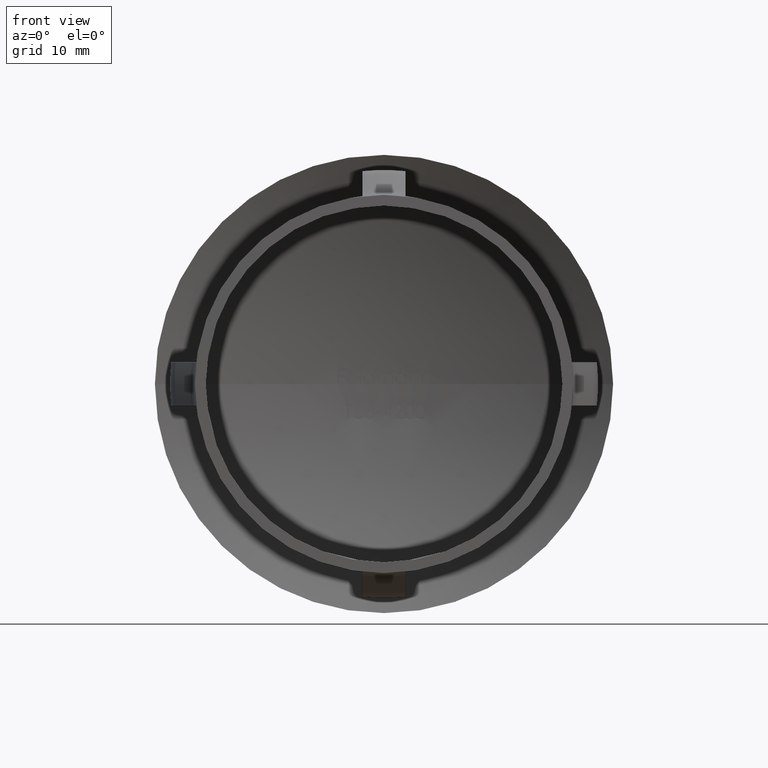
[diagram: clean part render]
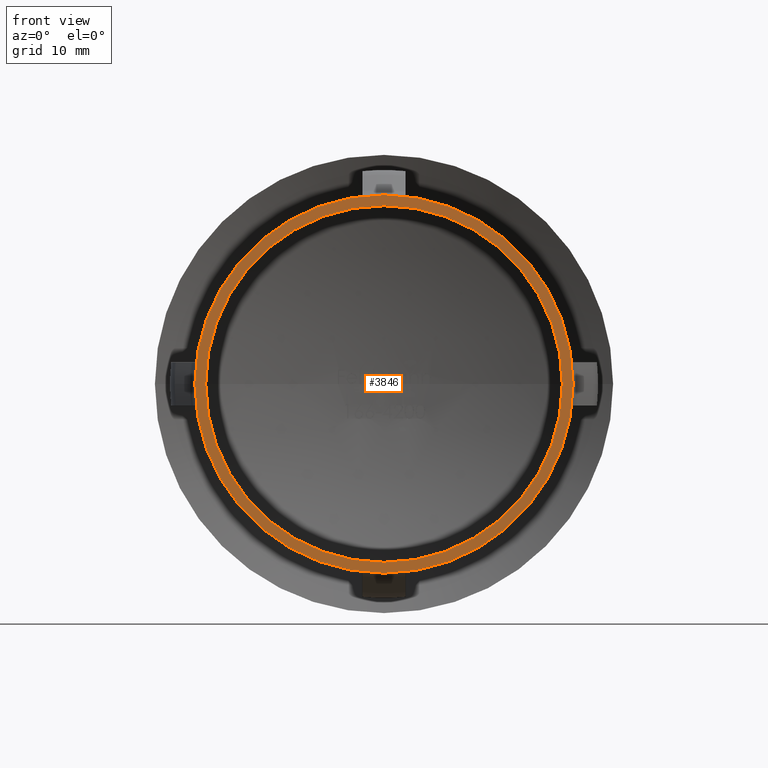
[diagram: same view with one face highlighted and labeled with its STEP entity id]
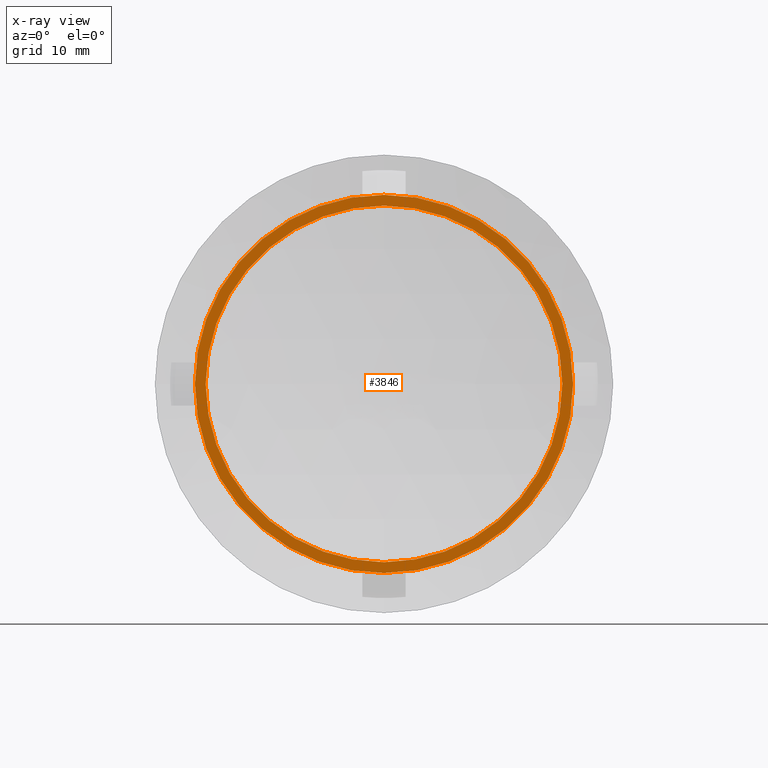
[diagram: x-ray of the same camera — body ghosted, the highlighted face saturated]
A machine part, front view. The second image highlights one B-rep face of the part: STEP entity #3846.
The next image is the same camera in x-ray: the body ghosted, the highlighted face saturated — about 0% of this face is hidden behind the body in this view.
In plain terms, the highlighted planar face has unit normal (-0, -1, 0).
Its self-contained STEP definition (entity closure, byte-faithful):
#144 = VERTEX_POINT ( 'NONE', #1020 ) ;
#804 = EDGE_CURVE ( 'NONE', #144, #11463, #12753, .T. ) ;
#965 = DIRECTION ( 'NONE',  ( 1.000000000000000000, -2.904862207577519400E-015, 0.0000000000000000000 ) ) ;
#1020 = CARTESIAN_POINT ( 'NONE',  ( 16.49999999999999600, 6.420309023212971100E-016, 0.0000000000000000000 ) ) ;
#1345 = DIRECTION ( 'NONE',  ( -2.904862207577519400E-015, -1.000000000000000000, 0.0000000000000000000 ) ) ;
#1677 = DIRECTION ( 'NONE',  ( 1.000000000000000000, -2.904862207577519000E-015, 0.0000000000000000000 ) ) ;
#1883 = VERTEX_POINT ( 'NONE', #8430 ) ;
#2216 = CARTESIAN_POINT ( 'NONE',  ( -8.395051779899015700E-014, 4.857225732735059900E-014, 0.0000000000000000000 ) ) ;
#2493 = EDGE_LOOP ( 'NONE', ( #4913, #6100 ) ) ;
#2737 = ORIENTED_EDGE ( 'NONE', *, *, #11010, .F. ) ;
#3025 = CARTESIAN_POINT ( 'NONE',  ( 17.50000000000000000, 1.206615646697376900E-015, 0.0000000000000000000 ) ) ;
#3047 = CARTESIAN_POINT ( 'NONE',  ( -8.395051779899014400E-014, 5.204170427930421300E-014, 0.0000000000000000000 ) ) ;
#3105 = CARTESIAN_POINT ( 'NONE',  ( -8.395051779899014400E-014, 5.204170427930421300E-014, 0.0000000000000000000 ) ) ;
#3846 = ADVANCED_FACE ( 'NONE', ( #7150, #12640 ), #7011, .T. ) ;
#4162 = DIRECTION ( 'NONE',  ( 1.000000000000000000, -2.904862207577519400E-015, 0.0000000000000000000 ) ) ;
#4238 = CIRCLE ( 'NONE', #14102, 17.50000000000008500 ) ;
#4913 = ORIENTED_EDGE ( 'NONE', *, *, #10350, .T. ) ;
#5757 = CARTESIAN_POINT ( 'NONE',  ( 16.49999999999999600, 1.421814933810087200E-015, 0.0000000000000000000 ) ) ;
#6100 = ORIENTED_EDGE ( 'NONE', *, *, #11111, .T. ) ;
#6463 = CIRCLE ( 'NONE', #9482, 16.50000000000008200 ) ;
#7011 = PLANE ( 'NONE',  #11683 ) ;
#7150 = FACE_OUTER_BOUND ( 'NONE', #2493, .T. ) ;
#8413 = CARTESIAN_POINT ( 'NONE',  ( -8.395051779899015700E-014, 4.857225732735059900E-014, 0.0000000000000000000 ) ) ;
#8430 = CARTESIAN_POINT ( 'NONE',  ( -17.50000000000016700, 1.028767929119110500E-013, 2.143131898507882800E-015 ) ) ;
#8605 = DIRECTION ( 'NONE',  ( -2.904862207577519400E-015, -1.000000000000000000, -0.0000000000000000000 ) ) ;
#8657 = CIRCLE ( 'NONE', #11936, 17.50000000000008500 ) ;
#9482 = AXIS2_PLACEMENT_3D ( 'NONE', #8413, #13990, #1677 ) ;
#9859 = DIRECTION ( 'NONE',  ( 1.000000000000000000, -2.904862207577519000E-015, 0.0000000000000000000 ) ) ;
#10280 = DIRECTION ( 'NONE',  ( 1.000000000000000000, -2.904862207577519400E-015, 0.0000000000000000000 ) ) ;
#10350 = EDGE_CURVE ( 'NONE', #12632, #1883, #8657, .T. ) ;
#10629 = CARTESIAN_POINT ( 'NONE',  ( -16.50000000000016300, 9.650248375237989400E-014, 2.020667218593147300E-015 ) ) ;
#10756 = DIRECTION ( 'NONE',  ( -2.904862207577519400E-015, -1.000000000000000000, -0.0000000000000000000 ) ) ;
#10909 = DIRECTION ( 'NONE',  ( -2.904862207577519400E-015, -1.000000000000000000, -0.0000000000000000000 ) ) ;
#11010 = EDGE_CURVE ( 'NONE', #11463, #144, #6463, .T. ) ;
#11111 = EDGE_CURVE ( 'NONE', #1883, #12632, #4238, .T. ) ;
#11463 = VERTEX_POINT ( 'NONE', #10629 ) ;
#11641 = EDGE_LOOP ( 'NONE', ( #13312, #2737 ) ) ;
#11683 = AXIS2_PLACEMENT_3D ( 'NONE', #5757, #1345, #10280 ) ;
#11936 = AXIS2_PLACEMENT_3D ( 'NONE', #3047, #10756, #4162 ) ;
#12632 = VERTEX_POINT ( 'NONE', #3025 ) ;
#12640 = FACE_BOUND ( 'NONE', #11641, .T. ) ;
#12753 = CIRCLE ( 'NONE', #13859, 16.50000000000008200 ) ;
#13312 = ORIENTED_EDGE ( 'NONE', *, *, #804, .F. ) ;
#13859 = AXIS2_PLACEMENT_3D ( 'NONE', #2216, #10909, #9859 ) ;
#13990 = DIRECTION ( 'NONE',  ( -2.904862207577519400E-015, -1.000000000000000000, -0.0000000000000000000 ) ) ;
#14102 = AXIS2_PLACEMENT_3D ( 'NONE', #3105, #8605, #965 ) ;